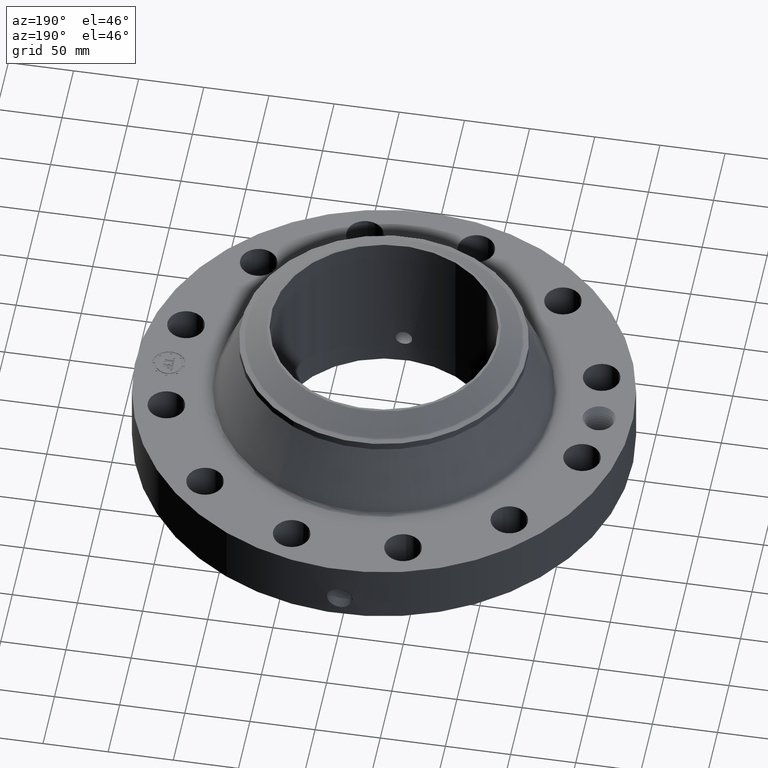
[diagram: clean part render]
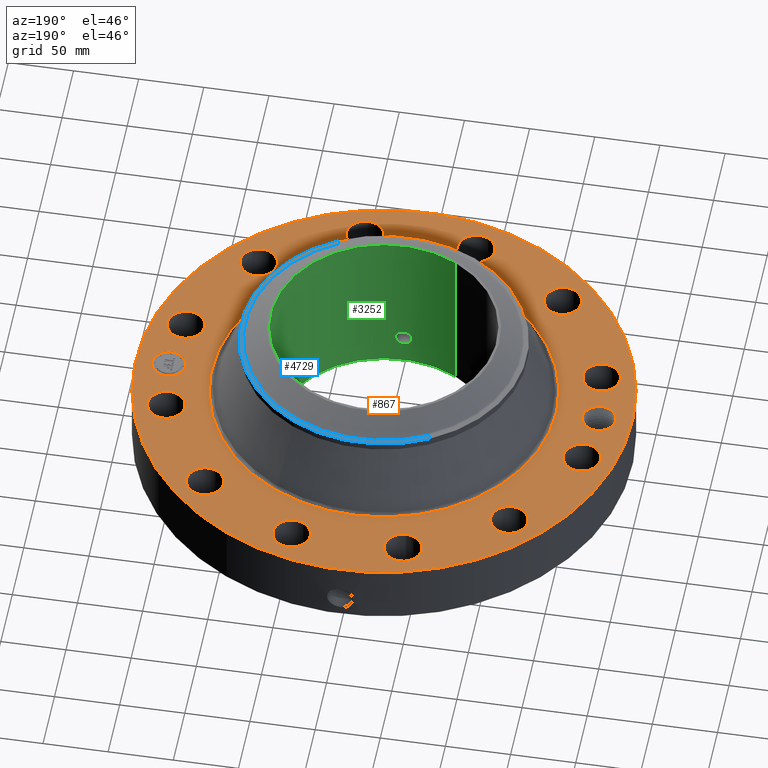
[diagram: same view with three faces highlighted in distinct colors, each labeled with its STEP entity id]
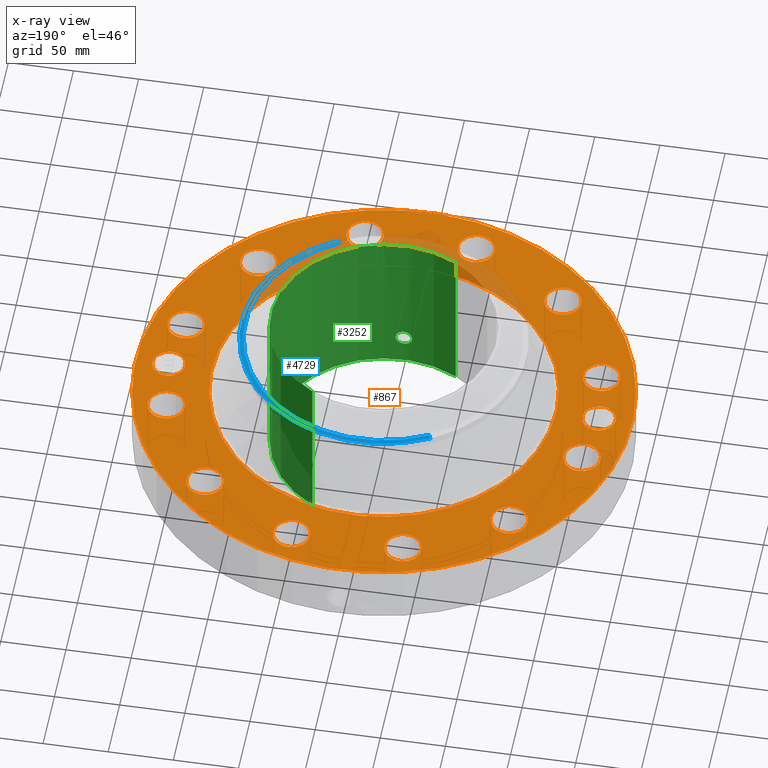
[diagram: x-ray of the same camera — body ghosted, the three highlighted faces saturated]
A machine part, auxiliary view with three faces highlighted in distinct colors.
The next image is the same camera in x-ray (body ghosted, the three faces saturated) — at least one of them is partly hidden behind the body in this view.
Their STEP definitions:

[orange] entity #867 — the highlighted planar face has unit normal (0, 0, -1).
#58=AXIS2_PLACEMENT_3D('Circle Axis2P3D',#56,#57,$) ;
#461=AXIS2_PLACEMENT_3D('Circle Axis2P3D',#459,#460,$) ;
#561=AXIS2_PLACEMENT_3D('Plane Axis2P3D',#558,#559,#560) ;
#591=AXIS2_PLACEMENT_3D('Circle Axis2P3D',#589,#590,$) ;
#598=AXIS2_PLACEMENT_3D('Circle Axis2P3D',#596,#597,$) ;
#605=AXIS2_PLACEMENT_3D('Circle Axis2P3D',#603,#604,$) ;
#617=AXIS2_PLACEMENT_3D('Circle Axis2P3D',#615,#616,$) ;
#626=AXIS2_PLACEMENT_3D('Circle Axis2P3D',#624,#625,$) ;
#635=AXIS2_PLACEMENT_3D('Circle Axis2P3D',#633,#634,$) ;
#644=AXIS2_PLACEMENT_3D('Circle Axis2P3D',#642,#643,$) ;
#653=AXIS2_PLACEMENT_3D('Circle Axis2P3D',#651,#652,$) ;
#662=AXIS2_PLACEMENT_3D('Circle Axis2P3D',#660,#661,$) ;
#671=AXIS2_PLACEMENT_3D('Circle Axis2P3D',#669,#670,$) ;
#680=AXIS2_PLACEMENT_3D('Circle Axis2P3D',#678,#679,$) ;
#689=AXIS2_PLACEMENT_3D('Circle Axis2P3D',#687,#688,$) ;
#698=AXIS2_PLACEMENT_3D('Circle Axis2P3D',#696,#697,$) ;
#707=AXIS2_PLACEMENT_3D('Circle Axis2P3D',#705,#706,$) ;
#716=AXIS2_PLACEMENT_3D('Circle Axis2P3D',#714,#715,$) ;
#725=AXIS2_PLACEMENT_3D('Circle Axis2P3D',#723,#724,$) ;
#734=AXIS2_PLACEMENT_3D('Circle Axis2P3D',#732,#733,$) ;
#743=AXIS2_PLACEMENT_3D('Circle Axis2P3D',#741,#742,$) ;
#752=AXIS2_PLACEMENT_3D('Circle Axis2P3D',#750,#751,$) ;
#761=AXIS2_PLACEMENT_3D('Circle Axis2P3D',#759,#760,$) ;
#770=AXIS2_PLACEMENT_3D('Circle Axis2P3D',#768,#769,$) ;
#779=AXIS2_PLACEMENT_3D('Circle Axis2P3D',#777,#778,$) ;
#788=AXIS2_PLACEMENT_3D('Circle Axis2P3D',#786,#787,$) ;
#797=AXIS2_PLACEMENT_3D('Circle Axis2P3D',#795,#796,$) ;
#806=AXIS2_PLACEMENT_3D('Circle Axis2P3D',#804,#805,$) ;
#815=AXIS2_PLACEMENT_3D('Circle Axis2P3D',#813,#814,$) ;
#824=AXIS2_PLACEMENT_3D('Circle Axis2P3D',#822,#823,$) ;
#833=AXIS2_PLACEMENT_3D('Circle Axis2P3D',#831,#832,$) ;
#842=AXIS2_PLACEMENT_3D('Circle Axis2P3D',#840,#841,$) ;
#851=AXIS2_PLACEMENT_3D('Circle Axis2P3D',#849,#850,$) ;
#860=AXIS2_PLACEMENT_3D('Circle Axis2P3D',#858,#859,$) ;
#53=CARTESIAN_POINT('Vertex',(-3.59569153955,-6.5818692142,2.13000000001)) ;
#56=CARTESIAN_POINT('Axis2P3D Location',(0.,0.,2.13000000001)) ;
#60=CARTESIAN_POINT('Vertex',(3.59569153955,6.5818692142,2.13000000001)) ;
#459=CARTESIAN_POINT('Axis2P3D Location',(0.,0.,2.13000000001)) ;
#558=CARTESIAN_POINT('Axis2P3D Location',(0.,7.50000000003,2.13000000001)) ;
#568=CARTESIAN_POINT('Control Point',(-6.00000000002,2.23792987641E-015,2.13000000001)) ;
#569=CARTESIAN_POINT('Control Point',(-6.00049933789,0.0123420433095,2.13000000001)) ;
#570=CARTESIAN_POINT('Control Point',(-6.00137982011,0.0246614713107,2.13000000001)) ;
#571=CARTESIAN_POINT('Control Point',(-6.00264056847,0.0369424629272,2.13000000001)) ;
#572=CARTESIAN_POINT('Control Point',(-6.00427968044,0.0491692437256,2.13000000001)) ;
#573=CARTESIAN_POINT('Control Point',(-6.00629427241,0.0613262139882,2.13000000001)) ;
#574=CARTESIAN_POINT('Vertex',(-6.00000000002,2.23792987641E-015,2.13000000001)) ;
#576=CARTESIAN_POINT('Vertex',(-6.00629427241,0.0613262139882,2.13000000001)) ;
#580=CARTESIAN_POINT('Control Point',(-6.00000000002,0.,2.13000000001)) ;
#581=CARTESIAN_POINT('Control Point',(-6.00049957684,-0.0123479499102,2.13000000001)) ;
#582=CARTESIAN_POINT('Control Point',(-6.00138066292,-0.0246732628256,2.13000000001)) ;
#583=CARTESIAN_POINT('Control Point',(-6.00264220304,-0.0369597188169,2.13000000001)) ;
#584=CARTESIAN_POINT('Control Point',(-6.00428214922,-0.0491912621966,2.13000000001)) ;
#585=CARTESIAN_POINT('Control Point',(-6.00629748869,-0.0613521010315,2.13000000001)) ;
#586=CARTESIAN_POINT('Vertex',(-6.00629748869,-0.0613521010315,2.13000000001)) ;
#589=CARTESIAN_POINT('Axis2P3D Location',(-6.50000000003,1.1189649382E-015,2.13000000001)) ;
#593=CARTESIAN_POINT('Vertex',(-6.06340267548,-0.238514205457,2.13000000001)) ;
#596=CARTESIAN_POINT('Axis2P3D Location',(-6.50000000003,1.1189649382E-015,2.13000000001)) ;
#600=CARTESIAN_POINT('Vertex',(-6.93659732457,0.238514205457,2.13000000001)) ;
#603=CARTESIAN_POINT('Axis2P3D Location',(-6.50000000003,1.1189649382E-015,2.13000000001)) ;
#615=CARTESIAN_POINT('Axis2P3D Location',(6.2785178709,-1.68232379317,2.13000000001)) ;
#619=CARTESIAN_POINT('Vertex',(5.78707163624,-1.41384549155,2.13000000001)) ;
#621=CARTESIAN_POINT('Vertex',(6.76996410556,-1.95080209479,2.13000000001)) ;
#624=CARTESIAN_POINT('Axis2P3D Location',(6.2785178709,-1.68232379317,2.13000000001)) ;
#633=CARTESIAN_POINT('Axis2P3D Location',(0.,0.,2.13000000001)) ;
#637=CARTESIAN_POINT('Vertex',(-2.49554499067,-4.56806446441,2.13000000001)) ;
#639=CARTESIAN_POINT('Vertex',(2.49554499067,4.56806446441,2.13000000001)) ;
#642=CARTESIAN_POINT('Axis2P3D Location',(0.,0.,2.13000000001)) ;
#651=CARTESIAN_POINT('Axis2P3D Location',(4.59619407773,-4.59619407773,2.13000000001)) ;
#655=CARTESIAN_POINT('Vertex',(4.88755985073,-5.07442622463,2.13000000001)) ;
#657=CARTESIAN_POINT('Vertex',(4.30482830473,-4.11796193083,2.13000000001)) ;
#660=CARTESIAN_POINT('Axis2P3D Location',(4.59619407773,-4.59619407773,2.13000000001)) ;
#669=CARTESIAN_POINT('Axis2P3D Location',(1.68232379317,-6.2785178709,2.13000000001)) ;
#673=CARTESIAN_POINT('Vertex',(1.69553788094,-6.83836194552,2.13000000001)) ;
#675=CARTESIAN_POINT('Vertex',(1.66910970541,-5.71867379628,2.13000000001)) ;
#678=CARTESIAN_POINT('Axis2P3D Location',(1.68232379317,-6.2785178709,2.13000000001)) ;
#687=CARTESIAN_POINT('Axis2P3D Location',(-1.68232379317,-6.2785178709,2.13000000001)) ;
#691=CARTESIAN_POINT('Vertex',(-1.95080209479,-6.76996410556,2.13000000001)) ;
#693=CARTESIAN_POINT('Vertex',(-1.41384549155,-5.78707163624,2.13000000001)) ;
#696=CARTESIAN_POINT('Axis2P3D Location',(-1.68232379317,-6.2785178709,2.13000000001)) ;
#705=CARTESIAN_POINT('Axis2P3D Location',(-4.59619407773,-4.59619407773,2.13000000001)) ;
#709=CARTESIAN_POINT('Vertex',(-5.07442622463,-4.88755985073,2.13000000001)) ;
#711=CARTESIAN_POINT('Vertex',(-4.11796193083,-4.30482830473,2.13000000001)) ;
#714=CARTESIAN_POINT('Axis2P3D Location',(-4.59619407773,-4.59619407773,2.13000000001)) ;
#723=CARTESIAN_POINT('Axis2P3D Location',(-6.2785178709,-1.68232379317,2.13000000001)) ;
#727=CARTESIAN_POINT('Vertex',(-6.83836194552,-1.69553788094,2.13000000001)) ;
#729=CARTESIAN_POINT('Vertex',(-5.71867379628,-1.66910970541,2.13000000001)) ;
#732=CARTESIAN_POINT('Axis2P3D Location',(-6.2785178709,-1.68232379317,2.13000000001)) ;
#741=CARTESIAN_POINT('Axis2P3D Location',(-6.2785178709,1.68232379317,2.13000000001)) ;
#745=CARTESIAN_POINT('Vertex',(-6.76996410556,1.95080209479,2.13000000001)) ;
#747=CARTESIAN_POINT('Vertex',(-5.78707163624,1.41384549155,2.13000000001)) ;
#750=CARTESIAN_POINT('Axis2P3D Location',(-6.2785178709,1.68232379317,2.13000000001)) ;
#759=CARTESIAN_POINT('Axis2P3D Location',(-4.59619407773,4.59619407773,2.13000000001)) ;
#763=CARTESIAN_POINT('Vertex',(-4.88755985073,5.07442622463,2.13000000001)) ;
#765=CARTESIAN_POINT('Vertex',(-4.30482830473,4.11796193083,2.13000000001)) ;
#768=CARTESIAN_POINT('Axis2P3D Location',(-4.59619407773,4.59619407773,2.13000000001)) ;
#777=CARTESIAN_POINT('Axis2P3D Location',(-1.68232379317,6.2785178709,2.13000000001)) ;
#781=CARTESIAN_POINT('Vertex',(-1.69553788094,6.83836194552,2.13000000001)) ;
#783=CARTESIAN_POINT('Vertex',(-1.66910970541,5.71867379628,2.13000000001)) ;
#786=CARTESIAN_POINT('Axis2P3D Location',(-1.68232379317,6.2785178709,2.13000000001)) ;
#795=CARTESIAN_POINT('Axis2P3D Location',(1.68232379317,6.2785178709,2.13000000001)) ;
#799=CARTESIAN_POINT('Vertex',(1.95080209479,6.76996410556,2.13000000001)) ;
#801=CARTESIAN_POINT('Vertex',(1.41384549155,5.78707163624,2.13000000001)) ;
#804=CARTESIAN_POINT('Axis2P3D Location',(1.68232379317,6.2785178709,2.13000000001)) ;
#813=CARTESIAN_POINT('Axis2P3D Location',(4.59619407773,4.59619407773,2.13000000001)) ;
#817=CARTESIAN_POINT('Vertex',(5.07442622463,4.88755985073,2.13000000001)) ;
#819=CARTESIAN_POINT('Vertex',(4.11796193083,4.30482830473,2.13000000001)) ;
#822=CARTESIAN_POINT('Axis2P3D Location',(4.59619407773,4.59619407773,2.13000000001)) ;
#831=CARTESIAN_POINT('Axis2P3D Location',(6.2785178709,1.68232379317,2.13000000001)) ;
#835=CARTESIAN_POINT('Vertex',(6.83836194552,1.69553788094,2.13000000001)) ;
#837=CARTESIAN_POINT('Vertex',(5.71867379628,1.66910970541,2.13000000001)) ;
#840=CARTESIAN_POINT('Axis2P3D Location',(6.2785178709,1.68232379317,2.13000000001)) ;
#849=CARTESIAN_POINT('Axis2P3D Location',(6.50000000003,-2.68551585169E-014,2.13000000001)) ;
#853=CARTESIAN_POINT('Vertex',(6.50000000003,0.499999995002,2.13000000001)) ;
#855=CARTESIAN_POINT('Vertex',(6.50000000003,-0.499999995002,2.13000000001)) ;
#858=CARTESIAN_POINT('Axis2P3D Location',(6.50000000003,-2.57361935787E-014,2.13000000001)) ;
#57=DIRECTION('Axis2P3D Direction',(0.,0.,-0.0393700787402)) ;
#460=DIRECTION('Axis2P3D Direction',(0.,0.,-0.0393700787402)) ;
#559=DIRECTION('Axis2P3D Direction',(0.,0.,-0.0393700787402)) ;
#560=DIRECTION('Axis2P3D XDirection',(0.0393700787402,0.,0.)) ;
#590=DIRECTION('Axis2P3D Direction',(0.,0.,-0.0393700787402)) ;
#597=DIRECTION('Axis2P3D Direction',(0.,0.,-0.0393700787402)) ;
#604=DIRECTION('Axis2P3D Direction',(0.,0.,-0.0393700787402)) ;
#616=DIRECTION('Axis2P3D Direction',(0.,0.,-0.0393700787402)) ;
#625=DIRECTION('Axis2P3D Direction',(0.,0.,-0.0393700787402)) ;
#634=DIRECTION('Axis2P3D Direction',(0.,0.,-0.0393700787402)) ;
#643=DIRECTION('Axis2P3D Direction',(0.,0.,-0.0393700787402)) ;
#652=DIRECTION('Axis2P3D Direction',(0.,0.,-0.0393700787402)) ;
#661=DIRECTION('Axis2P3D Direction',(0.,0.,-0.0393700787402)) ;
#670=DIRECTION('Axis2P3D Direction',(0.,0.,-0.0393700787402)) ;
#679=DIRECTION('Axis2P3D Direction',(0.,0.,-0.0393700787402)) ;
#688=DIRECTION('Axis2P3D Direction',(0.,0.,-0.0393700787402)) ;
#697=DIRECTION('Axis2P3D Direction',(0.,0.,-0.0393700787402)) ;
#706=DIRECTION('Axis2P3D Direction',(0.,0.,-0.0393700787402)) ;
#715=DIRECTION('Axis2P3D Direction',(0.,0.,-0.0393700787402)) ;
#724=DIRECTION('Axis2P3D Direction',(0.,0.,-0.0393700787402)) ;
#733=DIRECTION('Axis2P3D Direction',(0.,0.,-0.0393700787402)) ;
#742=DIRECTION('Axis2P3D Direction',(0.,0.,-0.0393700787402)) ;
#751=DIRECTION('Axis2P3D Direction',(0.,0.,-0.0393700787402)) ;
#760=DIRECTION('Axis2P3D Direction',(0.,0.,-0.0393700787402)) ;
#769=DIRECTION('Axis2P3D Direction',(0.,0.,-0.0393700787402)) ;
#778=DIRECTION('Axis2P3D Direction',(0.,0.,-0.0393700787402)) ;
#787=DIRECTION('Axis2P3D Direction',(0.,0.,-0.0393700787402)) ;
#796=DIRECTION('Axis2P3D Direction',(0.,0.,-0.0393700787402)) ;
#805=DIRECTION('Axis2P3D Direction',(0.,0.,-0.0393700787402)) ;
#814=DIRECTION('Axis2P3D Direction',(0.,0.,-0.0393700787402)) ;
#823=DIRECTION('Axis2P3D Direction',(0.,0.,-0.0393700787402)) ;
#832=DIRECTION('Axis2P3D Direction',(0.,0.,-0.0393700787402)) ;
#841=DIRECTION('Axis2P3D Direction',(0.,0.,-0.0393700787402)) ;
#850=DIRECTION('Axis2P3D Direction',(0.,0.,-0.0393700787402)) ;
#859=DIRECTION('Axis2P3D Direction',(0.,0.,-0.0393700787402)) ;
#564=ORIENTED_EDGE('',*,*,#463,.F.) ;
#565=ORIENTED_EDGE('',*,*,#62,.F.) ;
#609=ORIENTED_EDGE('',*,*,#578,.F.) ;
#610=ORIENTED_EDGE('',*,*,#588,.T.) ;
#611=ORIENTED_EDGE('',*,*,#595,.T.) ;
#612=ORIENTED_EDGE('',*,*,#602,.T.) ;
#613=ORIENTED_EDGE('',*,*,#607,.T.) ;
#630=ORIENTED_EDGE('',*,*,#623,.T.) ;
#631=ORIENTED_EDGE('',*,*,#628,.T.) ;
#648=ORIENTED_EDGE('',*,*,#641,.T.) ;
#649=ORIENTED_EDGE('',*,*,#646,.T.) ;
#666=ORIENTED_EDGE('',*,*,#659,.T.) ;
#667=ORIENTED_EDGE('',*,*,#664,.T.) ;
#684=ORIENTED_EDGE('',*,*,#677,.T.) ;
#685=ORIENTED_EDGE('',*,*,#682,.T.) ;
#702=ORIENTED_EDGE('',*,*,#695,.T.) ;
#703=ORIENTED_EDGE('',*,*,#700,.T.) ;
#720=ORIENTED_EDGE('',*,*,#713,.T.) ;
#721=ORIENTED_EDGE('',*,*,#718,.T.) ;
#738=ORIENTED_EDGE('',*,*,#731,.T.) ;
#739=ORIENTED_EDGE('',*,*,#736,.T.) ;
#756=ORIENTED_EDGE('',*,*,#749,.T.) ;
#757=ORIENTED_EDGE('',*,*,#754,.T.) ;
#774=ORIENTED_EDGE('',*,*,#767,.T.) ;
#775=ORIENTED_EDGE('',*,*,#772,.T.) ;
#792=ORIENTED_EDGE('',*,*,#785,.T.) ;
#793=ORIENTED_EDGE('',*,*,#790,.T.) ;
#810=ORIENTED_EDGE('',*,*,#803,.T.) ;
#811=ORIENTED_EDGE('',*,*,#808,.T.) ;
#828=ORIENTED_EDGE('',*,*,#821,.T.) ;
#829=ORIENTED_EDGE('',*,*,#826,.T.) ;
#846=ORIENTED_EDGE('',*,*,#839,.T.) ;
#847=ORIENTED_EDGE('',*,*,#844,.T.) ;
#864=ORIENTED_EDGE('',*,*,#857,.T.) ;
#865=ORIENTED_EDGE('',*,*,#862,.T.) ;
#614=FACE_BOUND('',#608,.T.) ;
#632=FACE_BOUND('',#629,.T.) ;
#650=FACE_BOUND('',#647,.T.) ;
#668=FACE_BOUND('',#665,.T.) ;
#686=FACE_BOUND('',#683,.T.) ;
#704=FACE_BOUND('',#701,.T.) ;
#722=FACE_BOUND('',#719,.T.) ;
#740=FACE_BOUND('',#737,.T.) ;
#758=FACE_BOUND('',#755,.T.) ;
#776=FACE_BOUND('',#773,.T.) ;
#794=FACE_BOUND('',#791,.T.) ;
#812=FACE_BOUND('',#809,.T.) ;
#830=FACE_BOUND('',#827,.T.) ;
#848=FACE_BOUND('',#845,.T.) ;
#866=FACE_BOUND('',#863,.T.) ;
#867=ADVANCED_FACE('PartBody',(#566,#614,#632,#650,#668,#686,#704,#722,#740,#758,#776,#794,#812,#830,#848,#866),#562,.F.) ;
#567=B_SPLINE_CURVE_WITH_KNOTS('',5,(#568,#569,#570,#571,#572,#573),.UNSPECIFIED.,.F.,.U.,(6,6),(0.,2.15175514422),.UNSPECIFIED.) ;
#579=B_SPLINE_CURVE_WITH_KNOTS('',5,(#580,#581,#582,#583,#584,#585),.UNSPECIFIED.,.F.,.U.,(6,6),(0.,2.15278492161),.UNSPECIFIED.) ;
#59=CIRCLE('generated circle',#58,7.50000000003) ;
#462=CIRCLE('generated circle',#461,7.50000000003) ;
#592=CIRCLE('generated circle',#591,0.497500000002) ;
#599=CIRCLE('generated circle',#598,0.497500000002) ;
#606=CIRCLE('generated circle',#605,0.497500000002) ;
#618=CIRCLE('generated circle',#617,0.560000000002) ;
#627=CIRCLE('generated circle',#626,0.560000000002) ;
#636=CIRCLE('generated circle',#635,5.20528171682) ;
#645=CIRCLE('generated circle',#644,5.20528171682) ;
#654=CIRCLE('generated circle',#653,0.560000000002) ;
#663=CIRCLE('generated circle',#662,0.560000000002) ;
#672=CIRCLE('generated circle',#671,0.560000000002) ;
#681=CIRCLE('generated circle',#680,0.560000000002) ;
#690=CIRCLE('generated circle',#689,0.560000000002) ;
#699=CIRCLE('generated circle',#698,0.560000000002) ;
#708=CIRCLE('generated circle',#707,0.560000000002) ;
#717=CIRCLE('generated circle',#716,0.560000000002) ;
#726=CIRCLE('generated circle',#725,0.560000000002) ;
#735=CIRCLE('generated circle',#734,0.560000000002) ;
#744=CIRCLE('generated circle',#743,0.560000000002) ;
#753=CIRCLE('generated circle',#752,0.560000000002) ;
#762=CIRCLE('generated circle',#761,0.560000000002) ;
#771=CIRCLE('generated circle',#770,0.560000000002) ;
#780=CIRCLE('generated circle',#779,0.560000000002) ;
#789=CIRCLE('generated circle',#788,0.560000000002) ;
#798=CIRCLE('generated circle',#797,0.560000000002) ;
#807=CIRCLE('generated circle',#806,0.560000000002) ;
#816=CIRCLE('generated circle',#815,0.560000000002) ;
#825=CIRCLE('generated circle',#824,0.560000000002) ;
#834=CIRCLE('generated circle',#833,0.560000000002) ;
#843=CIRCLE('generated circle',#842,0.560000000002) ;
#852=CIRCLE('generated circle',#851,0.499999995002) ;
#861=CIRCLE('generated circle',#860,0.499999995002) ;
#62=EDGE_CURVE('',#54,#61,#59,.T.) ;
#463=EDGE_CURVE('',#61,#54,#462,.T.) ;
#578=EDGE_CURVE('',#575,#577,#567,.T.) ;
#588=EDGE_CURVE('',#575,#587,#579,.T.) ;
#595=EDGE_CURVE('',#587,#594,#592,.T.) ;
#602=EDGE_CURVE('',#594,#601,#599,.T.) ;
#607=EDGE_CURVE('',#601,#577,#606,.T.) ;
#623=EDGE_CURVE('',#620,#622,#618,.T.) ;
#628=EDGE_CURVE('',#622,#620,#627,.T.) ;
#641=EDGE_CURVE('',#638,#640,#636,.T.) ;
#646=EDGE_CURVE('',#640,#638,#645,.T.) ;
#659=EDGE_CURVE('',#656,#658,#654,.T.) ;
#664=EDGE_CURVE('',#658,#656,#663,.T.) ;
#677=EDGE_CURVE('',#674,#676,#672,.T.) ;
#682=EDGE_CURVE('',#676,#674,#681,.T.) ;
#695=EDGE_CURVE('',#692,#694,#690,.T.) ;
#700=EDGE_CURVE('',#694,#692,#699,.T.) ;
#713=EDGE_CURVE('',#710,#712,#708,.T.) ;
#718=EDGE_CURVE('',#712,#710,#717,.T.) ;
#731=EDGE_CURVE('',#728,#730,#726,.T.) ;
#736=EDGE_CURVE('',#730,#728,#735,.T.) ;
#749=EDGE_CURVE('',#746,#748,#744,.T.) ;
#754=EDGE_CURVE('',#748,#746,#753,.T.) ;
#767=EDGE_CURVE('',#764,#766,#762,.T.) ;
#772=EDGE_CURVE('',#766,#764,#771,.T.) ;
#785=EDGE_CURVE('',#782,#784,#780,.T.) ;
#790=EDGE_CURVE('',#784,#782,#789,.T.) ;
#803=EDGE_CURVE('',#800,#802,#798,.T.) ;
#808=EDGE_CURVE('',#802,#800,#807,.T.) ;
#821=EDGE_CURVE('',#818,#820,#816,.T.) ;
#826=EDGE_CURVE('',#820,#818,#825,.T.) ;
#839=EDGE_CURVE('',#836,#838,#834,.T.) ;
#844=EDGE_CURVE('',#838,#836,#843,.T.) ;
#857=EDGE_CURVE('',#854,#856,#852,.T.) ;
#862=EDGE_CURVE('',#856,#854,#861,.T.) ;
#563=EDGE_LOOP('',(#564,#565)) ;
#608=EDGE_LOOP('',(#609,#610,#611,#612,#613)) ;
#629=EDGE_LOOP('',(#630,#631)) ;
#647=EDGE_LOOP('',(#648,#649)) ;
#665=EDGE_LOOP('',(#666,#667)) ;
#683=EDGE_LOOP('',(#684,#685)) ;
#701=EDGE_LOOP('',(#702,#703)) ;
#719=EDGE_LOOP('',(#720,#721)) ;
#737=EDGE_LOOP('',(#738,#739)) ;
#755=EDGE_LOOP('',(#756,#757)) ;
#773=EDGE_LOOP('',(#774,#775)) ;
#791=EDGE_LOOP('',(#792,#793)) ;
#809=EDGE_LOOP('',(#810,#811)) ;
#827=EDGE_LOOP('',(#828,#829)) ;
#845=EDGE_LOOP('',(#846,#847)) ;
#863=EDGE_LOOP('',(#864,#865)) ;
#566=FACE_OUTER_BOUND('',#563,.T.) ;
#562=PLANE('',#561) ;
#54=VERTEX_POINT('',#53) ;
#61=VERTEX_POINT('',#60) ;
#575=VERTEX_POINT('',#574) ;
#577=VERTEX_POINT('',#576) ;
#587=VERTEX_POINT('',#586) ;
#594=VERTEX_POINT('',#593) ;
#601=VERTEX_POINT('',#600) ;
#620=VERTEX_POINT('',#619) ;
#622=VERTEX_POINT('',#621) ;
#638=VERTEX_POINT('',#637) ;
#640=VERTEX_POINT('',#639) ;
#656=VERTEX_POINT('',#655) ;
#658=VERTEX_POINT('',#657) ;
#674=VERTEX_POINT('',#673) ;
#676=VERTEX_POINT('',#675) ;
#692=VERTEX_POINT('',#691) ;
#694=VERTEX_POINT('',#693) ;
#710=VERTEX_POINT('',#709) ;
#712=VERTEX_POINT('',#711) ;
#728=VERTEX_POINT('',#727) ;
#730=VERTEX_POINT('',#729) ;
#746=VERTEX_POINT('',#745) ;
#748=VERTEX_POINT('',#747) ;
#764=VERTEX_POINT('',#763) ;
#766=VERTEX_POINT('',#765) ;
#782=VERTEX_POINT('',#781) ;
#784=VERTEX_POINT('',#783) ;
#800=VERTEX_POINT('',#799) ;
#802=VERTEX_POINT('',#801) ;
#818=VERTEX_POINT('',#817) ;
#820=VERTEX_POINT('',#819) ;
#836=VERTEX_POINT('',#835) ;
#838=VERTEX_POINT('',#837) ;
#854=VERTEX_POINT('',#853) ;
#856=VERTEX_POINT('',#855) ;

[blue] entity #4729 — the highlighted conical surface has half-angle 80 deg.
#3547=AXIS2_PLACEMENT_3D('Circle Axis2P3D',#3545,#3546,$) ;
#3574=AXIS2_PLACEMENT_3D('Circle Axis2P3D',#3572,#3573,$) ;
#4701=AXIS2_PLACEMENT_3D('Cone Axis2P3D',#4698,#4699,#4700) ;
#4712=AXIS2_PLACEMENT_3D('Circle Axis2P3D',#4710,#4711,$) ;
#3542=CARTESIAN_POINT('Vertex',(2.06872119909,3.78676875457,4.32813976631)) ;
#3545=CARTESIAN_POINT('Axis2P3D Location',(0.,0.,4.32813976631)) ;
#3549=CARTESIAN_POINT('Vertex',(2.06872119909,-3.78676875457,4.32813976631)) ;
#3569=CARTESIAN_POINT('Vertex',(-2.06872119909,3.78676875457,4.32813976631)) ;
#3572=CARTESIAN_POINT('Axis2P3D Location',(0.,0.,4.32813976631)) ;
#4698=CARTESIAN_POINT('Axis2P3D Location',(0.,0.,4.35141601924)) ;
#4703=CARTESIAN_POINT('Line Origine',(-2.0370776297,3.72884558934,4.33977789277)) ;
#4707=CARTESIAN_POINT('Vertex',(-2.00543406031,3.6709224241,4.35141601924)) ;
#4710=CARTESIAN_POINT('Axis2P3D Location',(0.,0.,4.35141601924)) ;
#4714=CARTESIAN_POINT('Vertex',(2.00543406031,-3.6709224241,4.35141601924)) ;
#4717=CARTESIAN_POINT('Line Origine',(2.0370776297,-3.72884558934,4.33977789277)) ;
#3546=DIRECTION('Axis2P3D Direction',(0.,0.,-0.0393700787402)) ;
#3573=DIRECTION('Axis2P3D Direction',(0.,0.,-0.0393700787402)) ;
#4699=DIRECTION('Axis2P3D Direction',(-0.,-0.,-0.0393700787402)) ;
#4700=DIRECTION('Axis2P3D XDirection',(0.0188750212049,-0.0345504945626,0.)) ;
#4704=DIRECTION('Vector Direction',(-0.0185882672208,0.0340255949157,-0.00683654242783)) ;
#4711=DIRECTION('Axis2P3D Direction',(0.,0.,-0.0393700787402)) ;
#4718=DIRECTION('Vector Direction',(0.0185882672208,-0.0340255949157,-0.00683654242783)) ;
#4705=VECTOR('Line Direction',#4704,0.0393700787402) ;
#4719=VECTOR('Line Direction',#4718,0.0393700787402) ;
#4723=ORIENTED_EDGE('',*,*,#4709,.F.) ;
#4724=ORIENTED_EDGE('',*,*,#4716,.F.) ;
#4725=ORIENTED_EDGE('',*,*,#4721,.T.) ;
#4726=ORIENTED_EDGE('',*,*,#3551,.T.) ;
#4727=ORIENTED_EDGE('',*,*,#3576,.F.) ;
#4729=ADVANCED_FACE('PartBody',(#4728),#4702,.T.) ;
#3548=CIRCLE('generated circle',#3547,4.31500000002) ;
#3575=CIRCLE('generated circle',#3574,4.31500000002) ;
#4713=CIRCLE('generated circle',#4712,4.18299380994) ;
#4702=CONICAL_SURFACE('Cone',#4701,4.18299380994,1.3962634016) ;
#3551=EDGE_CURVE('',#3550,#3543,#3548,.F.) ;
#3576=EDGE_CURVE('',#3570,#3543,#3575,.T.) ;
#4709=EDGE_CURVE('',#4708,#3570,#4706,.T.) ;
#4716=EDGE_CURVE('',#4715,#4708,#4713,.F.) ;
#4721=EDGE_CURVE('',#4715,#3550,#4720,.T.) ;
#4722=EDGE_LOOP('',(#4723,#4724,#4725,#4726,#4727)) ;
#4728=FACE_OUTER_BOUND('',#4722,.T.) ;
#4706=LINE('Line',#4703,#4705) ;
#4720=LINE('Line',#4717,#4719) ;
#3543=VERTEX_POINT('',#3542) ;
#3550=VERTEX_POINT('',#3549) ;
#3570=VERTEX_POINT('',#3569) ;
#4708=VERTEX_POINT('',#4707) ;
#4715=VERTEX_POINT('',#4714) ;

[green] entity #3252 — the highlighted cylindrical surface (partial cylindrical patch) has radius 86.5251 mm, axis along (0, 0, -1).
#2468=AXIS2_PLACEMENT_3D('Circle Axis2P3D',#2466,#2467,$) ;
#3183=AXIS2_PLACEMENT_3D('Cylinder Axis2P3D',#3180,#3181,#3182) ;
#3187=AXIS2_PLACEMENT_3D('Circle Axis2P3D',#3185,#3186,$) ;
#2466=CARTESIAN_POINT('Axis2P3D Location',(0.,0.,0.)) ;
#2470=CARTESIAN_POINT('Vertex',(1.63316309726,2.98948499709,-1.06301669129E-014)) ;
#2472=CARTESIAN_POINT('Vertex',(-1.63316309726,-2.98948499709,-1.06301669129E-014)) ;
#3180=CARTESIAN_POINT('Axis2P3D Location',(0.,0.,2.43500000001)) ;
#3185=CARTESIAN_POINT('Axis2P3D Location',(0.,0.,4.87000000002)) ;
#3189=CARTESIAN_POINT('Vertex',(1.63316309726,2.98948499709,4.87000000002)) ;
#3191=CARTESIAN_POINT('Vertex',(-1.63316309726,-2.98948499709,4.87000000002)) ;
#3194=CARTESIAN_POINT('Line Origine',(1.63316309726,2.98948499709,2.43500000001)) ;
#3199=CARTESIAN_POINT('Line Origine',(-1.63316309726,-2.98948499709,2.43500000001)) ;
#3211=CARTESIAN_POINT('Control Point',(0.219395640473,-3.39942756991,0.820143615352)) ;
#3212=CARTESIAN_POINT('Control Point',(0.206922090819,-3.40023260027,0.797310935864)) ;
#3213=CARTESIAN_POINT('Control Point',(0.191480270868,-3.40117174988,0.776104580072)) ;
#3214=CARTESIAN_POINT('Control Point',(0.173350436994,-3.40217234365,0.757035627451)) ;
#3215=CARTESIAN_POINT('Control Point',(0.112173204396,-3.4050649443,0.707576709848)) ;
#3216=CARTESIAN_POINT('Control Point',(0.03504541571,-3.40694423699,0.684041466094)) ;
#3217=CARTESIAN_POINT('Control Point',(-0.0194930744126,-3.40708579679,0.682387736332)) ;
#3218=CARTESIAN_POINT('Control Point',(-0.124058529571,-3.40502079393,0.707495514077)) ;
#3219=CARTESIAN_POINT('Control Point',(-0.203091449694,-3.40074014384,0.780328754019)) ;
#3220=CARTESIAN_POINT('Control Point',(-0.232089622918,-3.39862929034,0.826499040166)) ;
#3221=CARTESIAN_POINT('Control Point',(-0.25582004358,-3.39688687915,0.904672551185)) ;
#3222=CARTESIAN_POINT('Control Point',(-0.248318916533,-3.39743715578,0.984104687792)) ;
#3223=CARTESIAN_POINT('Control Point',(-0.242084279066,-3.39790142147,1.01072513467)) ;
#3224=CARTESIAN_POINT('Control Point',(-0.232337683464,-3.39859230345,1.03616613387)) ;
#3225=CARTESIAN_POINT('Control Point',(-0.219395640473,-3.39942756991,1.05985638466)) ;
#3226=CARTESIAN_POINT('Vertex',(0.219395640473,-3.39942756991,0.820143615352)) ;
#3228=CARTESIAN_POINT('Vertex',(-0.219395640473,-3.39942756991,1.05985638466)) ;
#3232=CARTESIAN_POINT('Control Point',(-0.219395640473,-3.39942756991,1.05985638466)) ;
#3233=CARTESIAN_POINT('Control Point',(-0.206922090815,-3.40023260027,1.08268906415)) ;
#3234=CARTESIAN_POINT('Control Point',(-0.191480270857,-3.40117174988,1.10389541995)) ;
#3235=CARTESIAN_POINT('Control Point',(-0.173350437014,-3.40217234365,1.12296437254)) ;
#3236=CARTESIAN_POINT('Control Point',(-0.112173204406,-3.4050649443,1.17242329016)) ;
#3237=CARTESIAN_POINT('Control Point',(-0.0350454157016,-3.40694423699,1.19595853392)) ;
#3238=CARTESIAN_POINT('Control Point',(0.0194930743906,-3.40708579679,1.19761226368)) ;
#3239=CARTESIAN_POINT('Control Point',(0.124058529539,-3.40502079394,1.17250448594)) ;
#3240=CARTESIAN_POINT('Control Point',(0.20309144966,-3.40074014384,1.09967124602)) ;
#3241=CARTESIAN_POINT('Control Point',(0.232089622927,-3.39862929034,1.05350095981)) ;
#3242=CARTESIAN_POINT('Control Point',(0.255820043578,-3.39688687915,0.975327448808)) ;
#3243=CARTESIAN_POINT('Control Point',(0.248318916534,-3.39743715578,0.89589531222)) ;
#3244=CARTESIAN_POINT('Control Point',(0.242084279066,-3.39790142147,0.869274865342)) ;
#3245=CARTESIAN_POINT('Control Point',(0.232337683465,-3.39859230345,0.843833866142)) ;
#3246=CARTESIAN_POINT('Control Point',(0.219395640473,-3.39942756991,0.820143615352)) ;
#2467=DIRECTION('Axis2P3D Direction',(0.,0.,-0.0393700787402)) ;
#3181=DIRECTION('Axis2P3D Direction',(0.,0.,-0.0393700787402)) ;
#3182=DIRECTION('Axis2P3D XDirection',(-0.0188750212049,-0.0345504945626,0.)) ;
#3186=DIRECTION('Axis2P3D Direction',(0.,0.,-0.0393700787402)) ;
#3195=DIRECTION('Vector Direction',(0.,0.,-0.0393700787402)) ;
#3200=DIRECTION('Vector Direction',(0.,0.,-0.0393700787402)) ;
#3196=VECTOR('Line Direction',#3195,0.0393700787402) ;
#3201=VECTOR('Line Direction',#3200,0.0393700787402) ;
#3205=ORIENTED_EDGE('',*,*,#3193,.F.) ;
#3206=ORIENTED_EDGE('',*,*,#3198,.T.) ;
#3207=ORIENTED_EDGE('',*,*,#2474,.T.) ;
#3208=ORIENTED_EDGE('',*,*,#3203,.F.) ;
#3249=ORIENTED_EDGE('',*,*,#3230,.F.) ;
#3250=ORIENTED_EDGE('',*,*,#3247,.F.) ;
#3251=FACE_BOUND('',#3248,.T.) ;
#3252=ADVANCED_FACE('PartBody',(#3209,#3251),#3184,.F.) ;
#3210=B_SPLINE_CURVE_WITH_KNOTS('',5,(#3211,#3212,#3213,#3214,#3215,#3216,#3217,#3218,#3219,#3220,#3221,#3222,#3223,#3224,#3225),.UNSPECIFIED.,.F.,.U.,(6,3,3,3,6),(0.,4.67514847903,14.0207936731,23.370711791,28.2214539038),.UNSPECIFIED.) ;
#3231=B_SPLINE_CURVE_WITH_KNOTS('',5,(#3232,#3233,#3234,#3235,#3236,#3237,#3238,#3239,#3240,#3241,#3242,#3243,#3244,#3245,#3246),.UNSPECIFIED.,.F.,.U.,(6,3,3,3,6),(0.,4.6751484807,14.0207936762,23.3707117904,28.2214539034),.UNSPECIFIED.) ;
#2469=CIRCLE('generated circle',#2468,3.40650000001) ;
#3188=CIRCLE('generated circle',#3187,3.40650000001) ;
#3184=CYLINDRICAL_SURFACE('generated cylinder',#3183,3.40650000001) ;
#2474=EDGE_CURVE('',#2471,#2473,#2469,.T.) ;
#3193=EDGE_CURVE('',#3190,#3192,#3188,.T.) ;
#3198=EDGE_CURVE('',#3190,#2471,#3197,.T.) ;
#3203=EDGE_CURVE('',#3192,#2473,#3202,.T.) ;
#3230=EDGE_CURVE('',#3227,#3229,#3210,.T.) ;
#3247=EDGE_CURVE('',#3229,#3227,#3231,.T.) ;
#3204=EDGE_LOOP('',(#3205,#3206,#3207,#3208)) ;
#3248=EDGE_LOOP('',(#3249,#3250)) ;
#3209=FACE_OUTER_BOUND('',#3204,.T.) ;
#3197=LINE('Line',#3194,#3196) ;
#3202=LINE('Line',#3199,#3201) ;
#2471=VERTEX_POINT('',#2470) ;
#2473=VERTEX_POINT('',#2472) ;
#3190=VERTEX_POINT('',#3189) ;
#3192=VERTEX_POINT('',#3191) ;
#3227=VERTEX_POINT('',#3226) ;
#3229=VERTEX_POINT('',#3228) ;